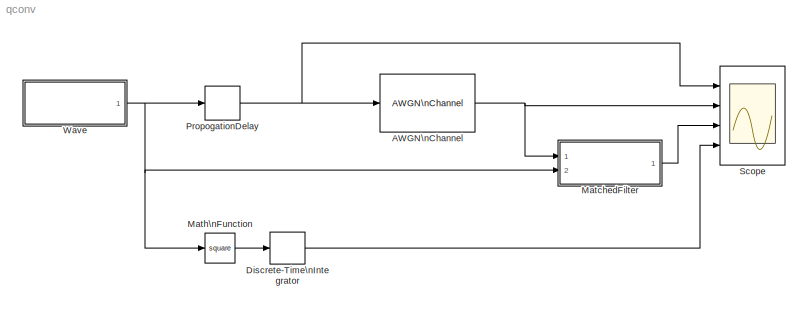
MODEL qconv
KIND model
CONFIG InitFcn = param
BLOCK [Reference] AWGN\nChannel  REF=commchan3/AWGN\nChannel
  EbNodB = 10
  EsNodB = 10
  InputProcessing = Columns as channels (frame based)
  Ports = [1, 1]
  Ps = 0.01
  SID = 12
  SNRdB = 0
  SourceBlock = commchan3/AWGN\nChannel
  SourceType = AWGN Channel
  Tsym = 1
  UserData = DataTag0
  UserDataPersistent = on
  bitsPerSym = 1
  noiseMode = Variance from mask
  seed = 67
  variance = noiseVariance
BLOCK [DiscreteIntegrator] Discrete-Time\nIntegrator
  ICPrevOutput = DiscIntNeverNeededParam
  ICPrevScaledInput = DiscIntNeverNeededParam
  Ports = [1, 1]
  SID = 59
  SampleTime = dt
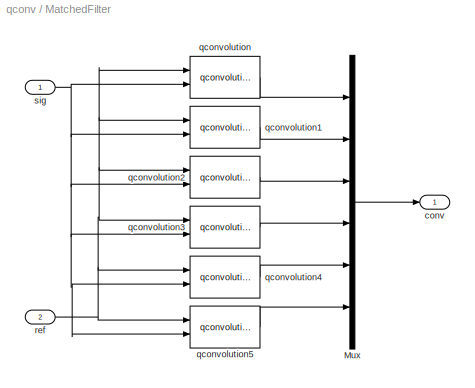
BLOCK [SubSystem] MatchedFilter
  Ports = [2, 1]
  RequestExecContextInheritance = off
  SID = 19
  Variant = off
BLOCK [Mux] MatchedFilter/Mux
  DisplayOption = bar
  Inputs = 6
  Ports = [6, 1]
  SID = 23
BLOCK [Outport] MatchedFilter/conv
  IconDisplay = Port number
  SID = 21
BLOCK [Reference] MatchedFilter/qconvolution  REF=qconvolution/qconvolution  (lib defined in slx_af00b831f893)
  Ports = [2, 1]
  SID = 145
  SourceBlock = qconvolution/qconvolution
  delay = 1000
BLOCK [Reference] MatchedFilter/qconvolution1  REF=qconvolution/qconvolution  (lib defined in slx_af00b831f893)
  Ports = [2, 1]
  SID = 140
  SourceBlock = qconvolution/qconvolution
  delay = 2500
BLOCK [Reference] MatchedFilter/qconvolution2  REF=qconvolution/qconvolution  (lib defined in slx_af00b831f893)
  Ports = [2, 1]
  SID = 141
  SourceBlock = qconvolution/qconvolution
  delay = 4000
BLOCK [Reference] MatchedFilter/qconvolution3  REF=qconvolution/qconvolution  (lib defined in slx_af00b831f893)
  Ports = [2, 1]
  SID = 142
  SourceBlock = qconvolution/qconvolution
  delay = 5500
BLOCK [Reference] MatchedFilter/qconvolution4  REF=qconvolution/qconvolution  (lib defined in slx_af00b831f893)
  Ports = [2, 1]
  SID = 143
  SourceBlock = qconvolution/qconvolution
  delay = 7000
BLOCK [Reference] MatchedFilter/qconvolution5  REF=qconvolution/qconvolution  (lib defined in slx_af00b831f893)
  Ports = [2, 1]
  SID = 144
  SourceBlock = qconvolution/qconvolution
  delay = 8500
BLOCK [Inport] MatchedFilter/ref
  IconDisplay = Port number
  Port = 2
  SID = 33
BLOCK [Inport] MatchedFilter/sig
  IconDisplay = Port number
  SID = 20
BLOCK [Math] Math\nFunction
  Operator = square
  Ports = [1, 1]
  SID = 60
  SampleTime = dt
BLOCK [Delay] PropogationDelay
  DelayLength = 1001
  InputPortMap = u0
  Ports = [1, 1]
  SID = 56
BLOCK [Scope] Scope
  NumInputPorts = 4
  Ports = [4]
  SID = 2
  ScopeSpecificationString = Simulink.scopes.TimeScopeBlockCfg('CurrentConfiguration', extmgr.ConfigurationSet(extmgr.Configuration('Core','General UI',true),extmgr.Configuration('Core','Source UI',true),extmgr.Configuration('Sources','WiredSimulink',true,'DataLoggingSaveFormat','StructureWithTime','DataLoggingDecimation','1','DataLoggingDecimateData',true),extmgr.Configuration('Visuals','Time Domain',true,'SerializedDisplays...<+3828ch>
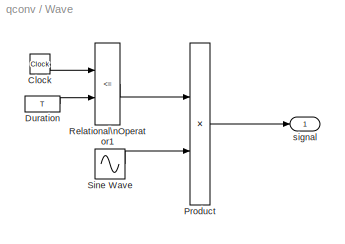
BLOCK [SubSystem] Wave
  Ports = [0, 1]
  RequestExecContextInheritance = off
  SID = 16
  Variant = off
BLOCK [Clock] Wave/Clock
  SID = 4
BLOCK [Constant] Wave/Duration
  SID = 11
  Value = T
BLOCK [Product] Wave/Product
  InputSameDT = off
  OutDataTypeStr = Inherit: Inherit via internal rule
  Ports = [2, 1]
  SID = 6
  SaturateOnIntegerOverflow = off
BLOCK [RelationalOperator] Wave/Relational\nOperator1
  InputSameDT = off
  Operator = <=
  OutDataTypeStr = boolean
  Ports = [2, 1]
  SID = 8
BLOCK [Sin] Wave/Sine Wave
  Amplitude = ampl
  Frequency = 2*pi*freq
  Phase = phi0
  Ports = [0, 1]
  SID = 1
  SampleTime = dt
BLOCK [Outport] Wave/signal
  IconDisplay = Port number
  SID = 18
NET AWGN\nChannel:1 -> MatchedFilter:1, Scope:2
LINE Discrete-Time\nIntegrator:1 -> Scope:4
LINE MatchedFilter/Mux:1 -> MatchedFilter/conv:1
LINE MatchedFilter/qconvolution1:1 -> MatchedFilter/Mux:2
LINE MatchedFilter/qconvolution2:1 -> MatchedFilter/Mux:3
LINE MatchedFilter/qconvolution3:1 -> MatchedFilter/Mux:4
LINE MatchedFilter/qconvolution4:1 -> MatchedFilter/Mux:5
LINE MatchedFilter/qconvolution5:1 -> MatchedFilter/Mux:6
LINE MatchedFilter/qconvolution:1 -> MatchedFilter/Mux:1
NET MatchedFilter/ref:1 -> MatchedFilter/qconvolution1:1, MatchedFilter/qconvolution2:1, MatchedFilter/qconvolution3:1, MatchedFilter/qconvolution4:1, MatchedFilter/qconvolution5:1, MatchedFilter/qconvolution:1
NET MatchedFilter/sig:1 -> MatchedFilter/qconvolution1:2, MatchedFilter/qconvolution2:2, MatchedFilter/qconvolution3:2, MatchedFilter/qconvolution4:2, MatchedFilter/qconvolution5:2, MatchedFilter/qconvolution:2
LINE MatchedFilter:1 -> Scope:3
LINE Math\nFunction:1 -> Discrete-Time\nIntegrator:1
NET PropogationDelay:1 -> AWGN\nChannel:1, Scope:1
LINE Wave/Clock:1 -> Wave/Relational\nOperator1:1
LINE Wave/Duration:1 -> Wave/Relational\nOperator1:2
LINE Wave/Product:1 -> Wave/signal:1
LINE Wave/Relational\nOperator1:1 -> Wave/Product:1
LINE Wave/Sine Wave:1 -> Wave/Product:2
NET Wave:1 -> MatchedFilter:2, Math\nFunction:1, PropogationDelay:1
note: NET lines group one-source signal fan-out (src -> all destinations, sorted); 1:1 wires keep LINE
